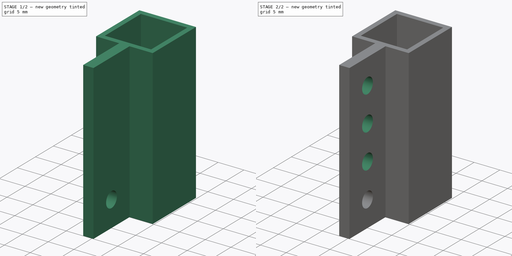
[diagram: build sequence overview — one tinted view per stage of 2, left to right]
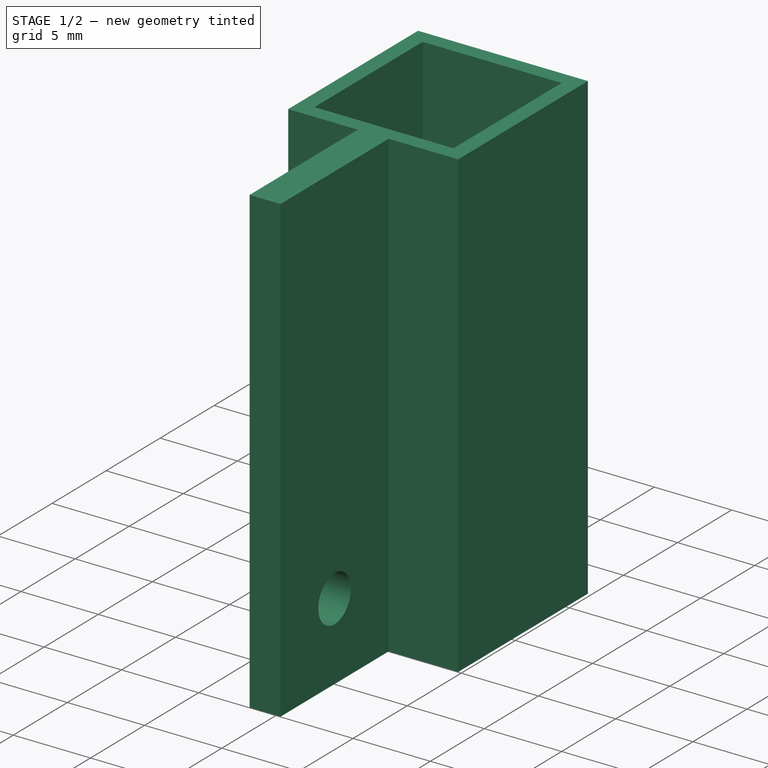
[diagram: stage 1 of 2 — iso view after this stage's code; geometry added in this stage tinted green]
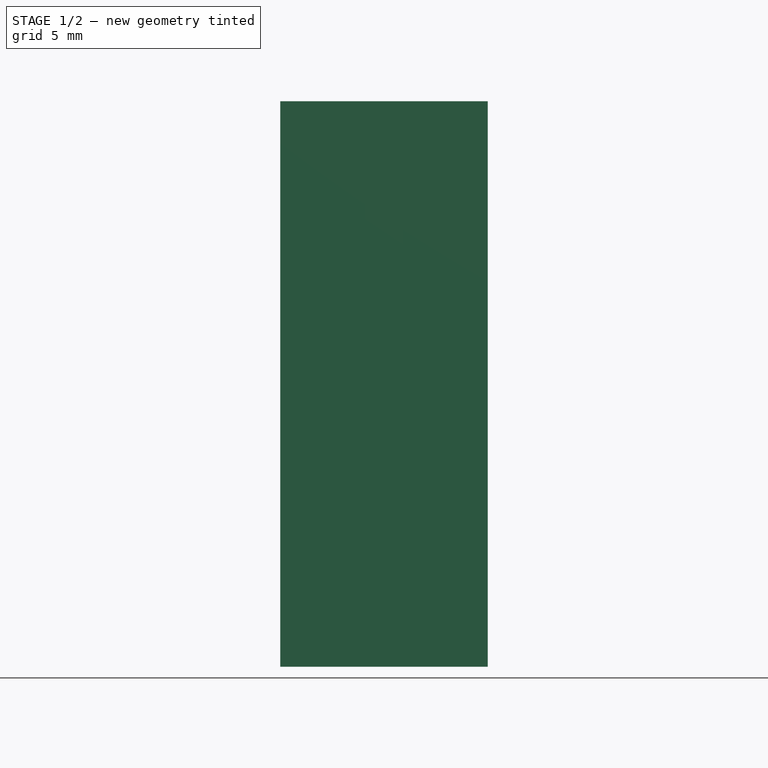
[diagram: stage 1 of 2 — front view after this stage's code; geometry added in this stage tinted green]
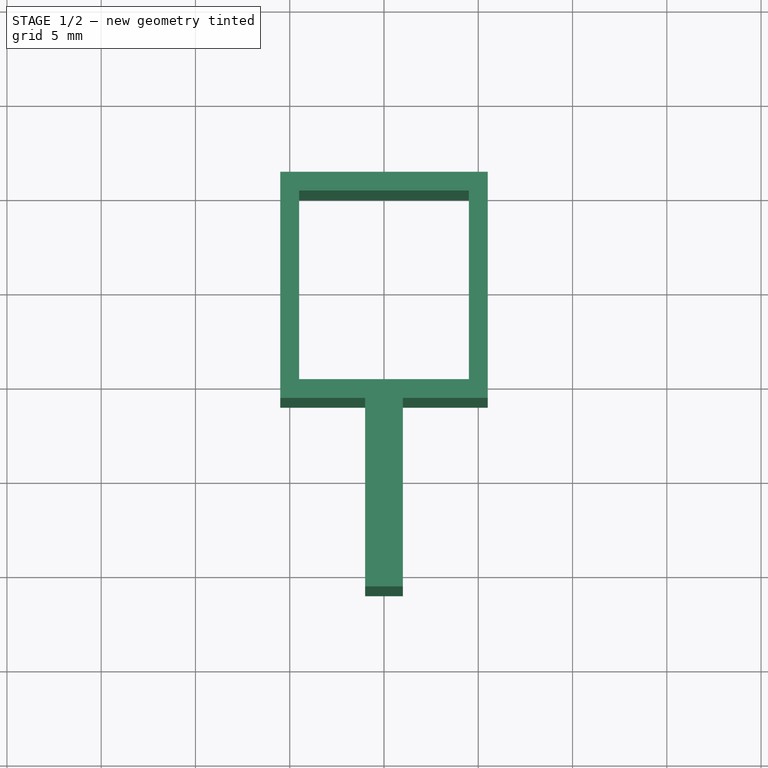
[diagram: stage 1 of 2 — top view after this stage's code; geometry added in this stage tinted green]
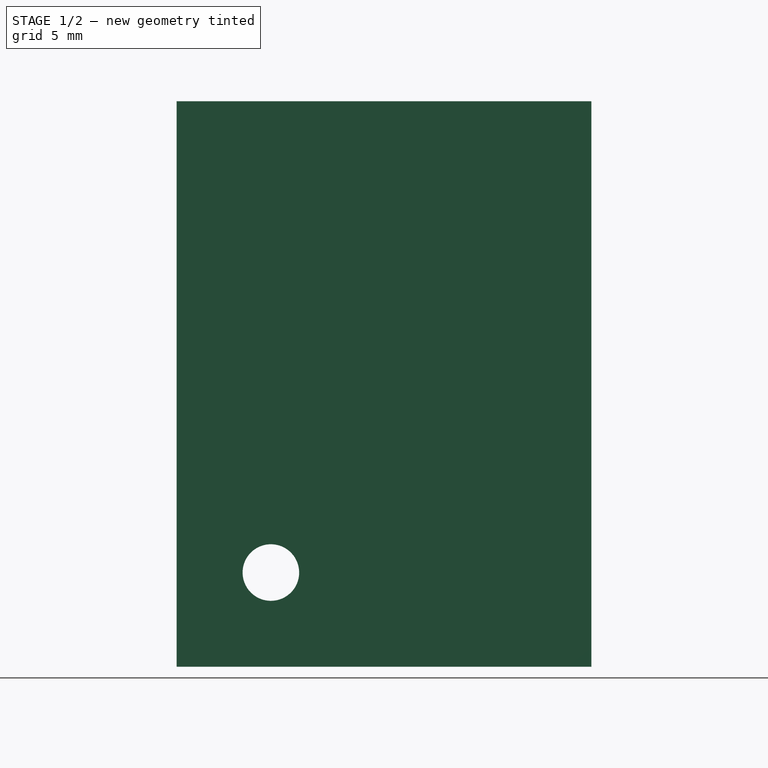
[diagram: stage 1 of 2 — right view after this stage's code; geometry added in this stage tinted green]
FCSTD DOCUMENT  (FreeCAD 0.20R29603 (Git))
Label: toilet repair lever
License: All rights reserved
LicenseURL: http://en.wikipedia.org/wiki/All_rights_reserved
objects: Sketcher::SketchObject×2, PartDesign::Pad×1, PartDesign::Pocket×1, PartDesign::LinearPattern×1, PartDesign::Body×1
note: 8 computed .brp shape members not serialized (recipe doc carries the construction recipe); baked Part::Feature solids carry a one-line shape summary decoded from their .brp

FEATURE [Sketcher::SketchObject] Sketch
  FullyConstrained = true
  MapMode = 5
  Support = -> [XY_Plane]
  sketch-geometry (14):
    g0: LineSegment StartX=-4.5 StartY=5 StartZ=0 EndX=-4.5 EndY=-5 EndZ=0
    g1: LineSegment StartX=-4.5 StartY=-5 StartZ=0 EndX=4.5 EndY=-5 EndZ=0
    g2: LineSegment StartX=4.5 StartY=-5 StartZ=0 EndX=4.5 EndY=5 EndZ=0
    g3: LineSegment StartX=4.5 StartY=5 StartZ=0 EndX=-4.5 EndY=5 EndZ=0
    g4: GeomPoint X=0 Y=0 Z=0
    g5: LineSegment StartX=-5.5 StartY=6 StartZ=0 EndX=-5.5 EndY=-6 EndZ=0
    g6: LineSegment StartX=5.5 StartY=-6 StartZ=0 EndX=5.5 EndY=6 EndZ=0
    g7: LineSegment StartX=5.5 StartY=6 StartZ=0 EndX=-5.5 EndY=6 EndZ=0
    g8: GeomPoint X=0 Y=0 Z=0
    g9: LineSegment StartX=-5.5 StartY=-6 StartZ=0 EndX=-1 EndY=-6 EndZ=0
    g10: LineSegment StartX=-1 StartY=-6 StartZ=0 EndX=-1 EndY=-16 EndZ=0
    g11: LineSegment StartX=-1 StartY=-16 StartZ=0 EndX=1 EndY=-16 EndZ=0
    g12: LineSegment StartX=1 StartY=-16 StartZ=0 EndX=1 EndY=-6 EndZ=0
    g13: LineSegment StartX=1 StartY=-6 StartZ=0 EndX=5.5 EndY=-6 EndZ=0
  constraints (35):
    c: Coincident(g0,g1)
    c: Coincident(g1,g2)
    c: Coincident(g2,g3)
    c: Coincident(g3,g0)
    c: Horizontal(g1)
    c: Horizontal(g3)
    c: Vertical(g0)
    c: Vertical(g2)
    c: Symmetric(g1,g0,g4)
    c: Coincident(g4,g-1)
    c: DistanceX(g3,g3) = 9
    c: DistanceY(g2,g2) = 10
    c: Coincident(g6,g7)
    c: Coincident(g7,g5)
    c: Horizontal(g7)
    c: Vertical(g5)
    c: Vertical(g6)
    c: Symmetric(g6,g5,g8)
    c: Coincident(g8,g4)
    c: DistanceX(g7,g7) = 11
    c: DistanceY(g6,g6) = 12
    c: Coincident(g5,g9)
    c: Horizontal(g9)
    c: Coincident(g9,g10)
    c: Vertical(g10)
    c: Coincident(g10,g11)
    c: Horizontal(g11)
    c: Coincident(g11,g12)
    c: Vertical(g12)
    c: Coincident(g12,g13)
    c: Coincident(g13,g6)
    c: Horizontal(g13)
    c: Symmetric(g9,g12,g-2)
    c: DistanceX(g11,g11) = 2
    c: DistanceY(g10,g10) = 10
FEATURE [PartDesign::Pad] Pad
  Direction = (0,0,1)
  Length = 30
  Length2 = 10
  Profile = -> Sketch
  ReferenceAxis = -> Sketch [N_Axis]
  Type = 0
FEATURE [Sketcher::SketchObject] Sketch001
  ExternalGeometry = -> [Pad]
  FullyConstrained = true
  MapMode = 5
  Placement = pos=(0,0,0) rot=(0.57735,0.57735,0.57735;2.0944rad)
  Support = -> [YZ_Plane]
  sketch-geometry (4):
    g0: GeomPoint X=-11 Y=-4e-15 Z=0
    g1: GeomPoint X=-11 Y=30 Z=0
    g2: Circle CenterX=-11 CenterY=5 CenterZ=0 NormalX=0 NormalY=0 NormalZ=1 AngleXU=0 Radius=1.5
    g3: LineSegment StartX=-11 StartY=-4e-15 StartZ=0 EndX=-11 EndY=30 EndZ=0
  constraints (7):
    c: Symmetric(g-3,g-4,g0)
    c: Symmetric(g-4,g-3,g1)
    c: DistanceY(g-4,g2) = 5
    c: Diameter(g2) = 3
    c: Coincident(g3,g0)
    c: Coincident(g3,g1)
    c: PointOnObject(g2,g3)
FEATURE [PartDesign::Pocket] Pocket
  BaseFeature = -> Pad
  Direction = (-1,2e-16,-3e-16)
  Length = 5
  Length2 = 5
  Midplane = true
  Profile = -> Sketch001
  ReferenceAxis = -> Sketch001 [N_Axis]
  Type = 1
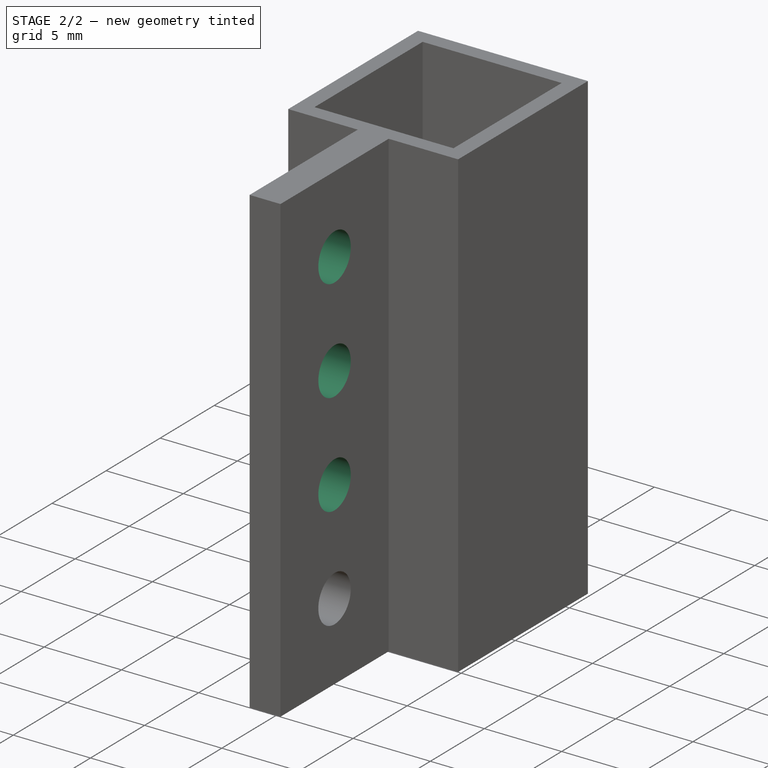
[diagram: stage 2 of 2 — iso view after this stage's code; geometry added in this stage tinted green]
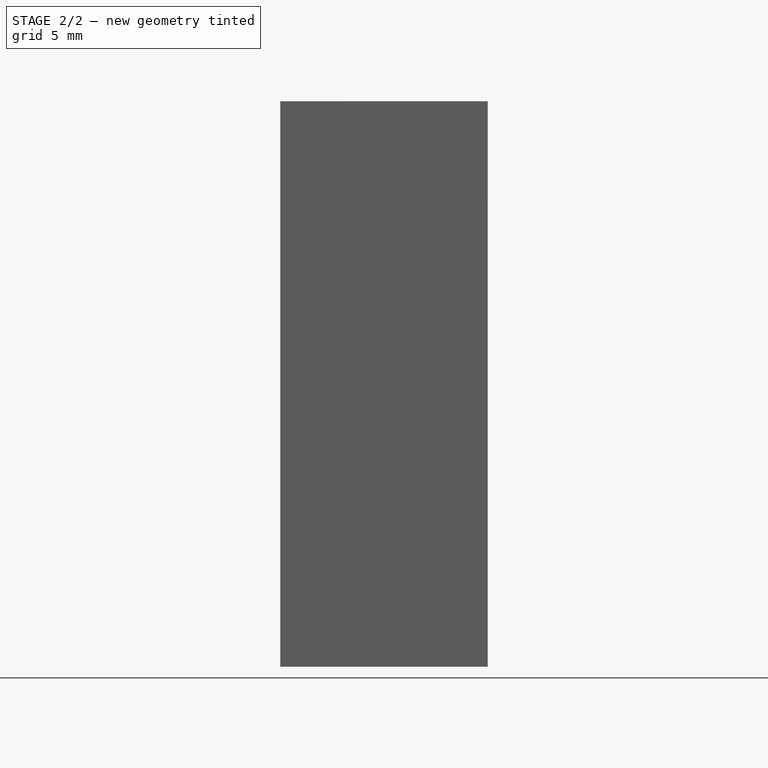
[diagram: stage 2 of 2 — front view after this stage's code; geometry added in this stage tinted green]
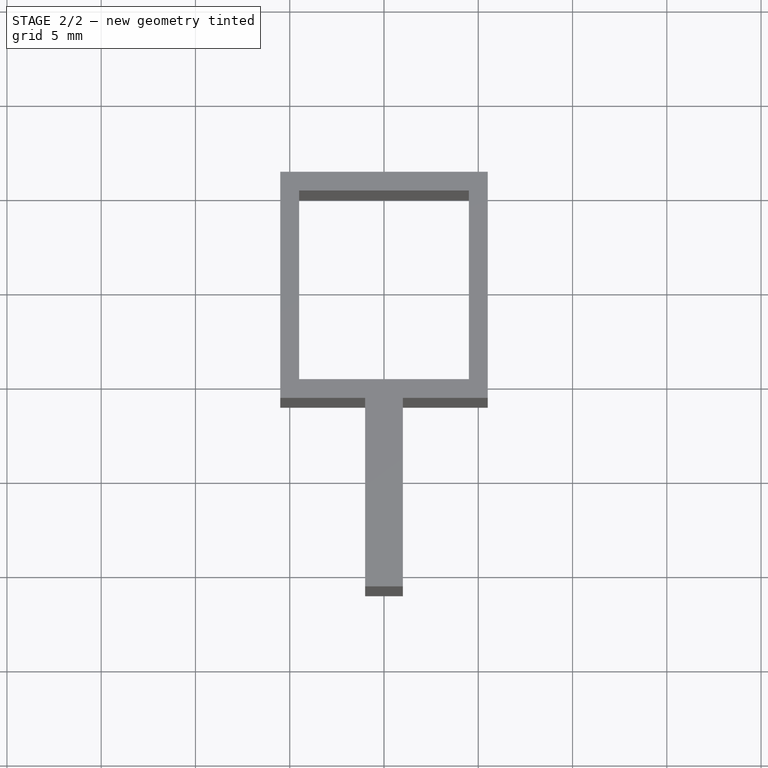
[diagram: stage 2 of 2 — top view after this stage's code; geometry added in this stage tinted green]
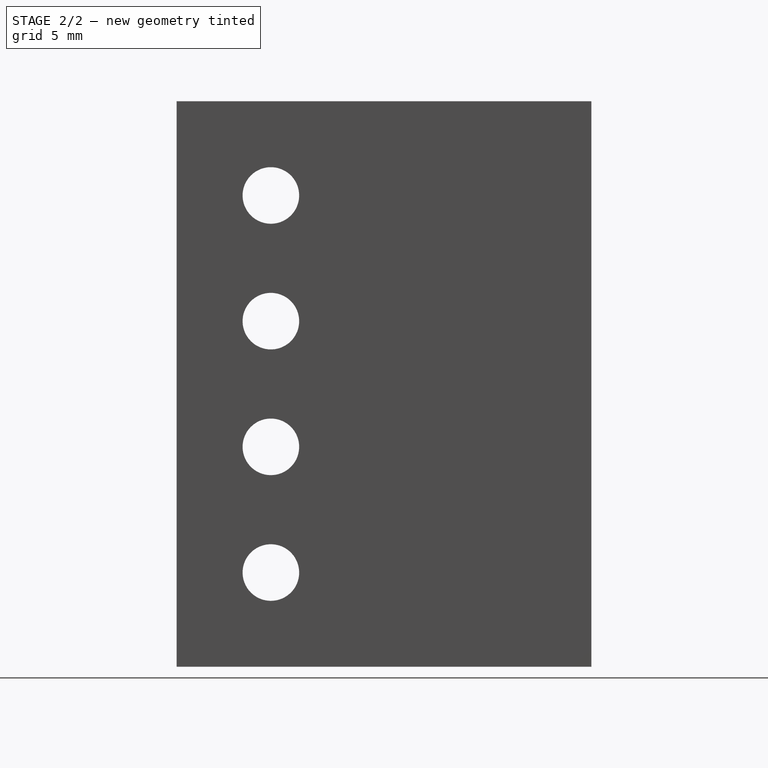
[diagram: stage 2 of 2 — right view after this stage's code; geometry added in this stage tinted green]
FEATURE [PartDesign::LinearPattern] LinearPattern
  BaseFeature = -> Pocket
  Direction = -> Sketch001 [V_Axis]
  Length = 20
  Occurrences = 4
  Originals = -> [Pocket]
FEATURE [PartDesign::Body] Body
  Group = -> [Sketch,Pad,Sketch001,Pocket,LinearPattern]
  Origin = -> Origin
  Tip = -> LinearPattern
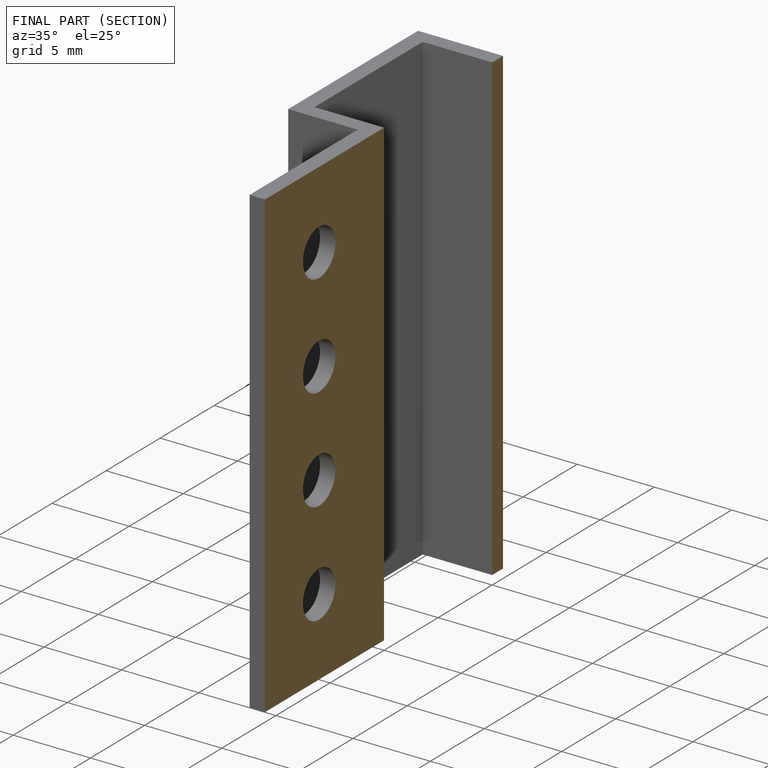
[diagram: finished part — half-section view (interior)]
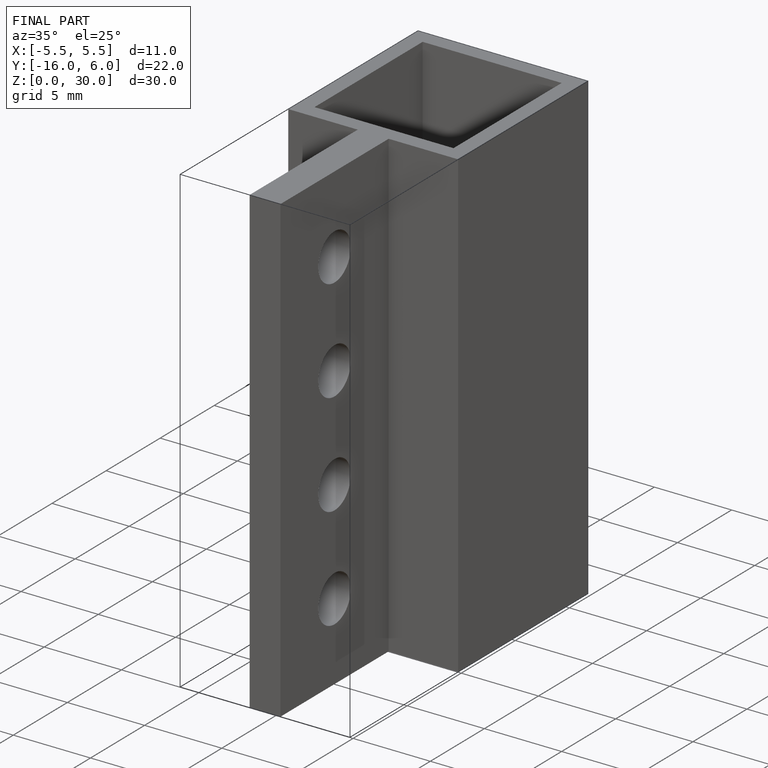
[diagram: finished part — iso view with bounding-box wireframe]
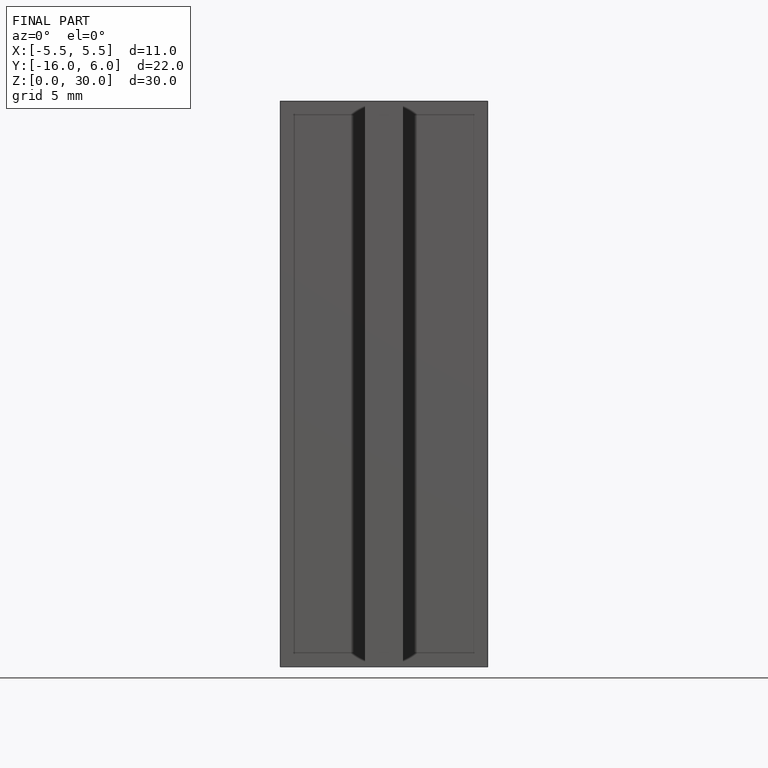
[diagram: finished part — front view with bounding-box wireframe]
